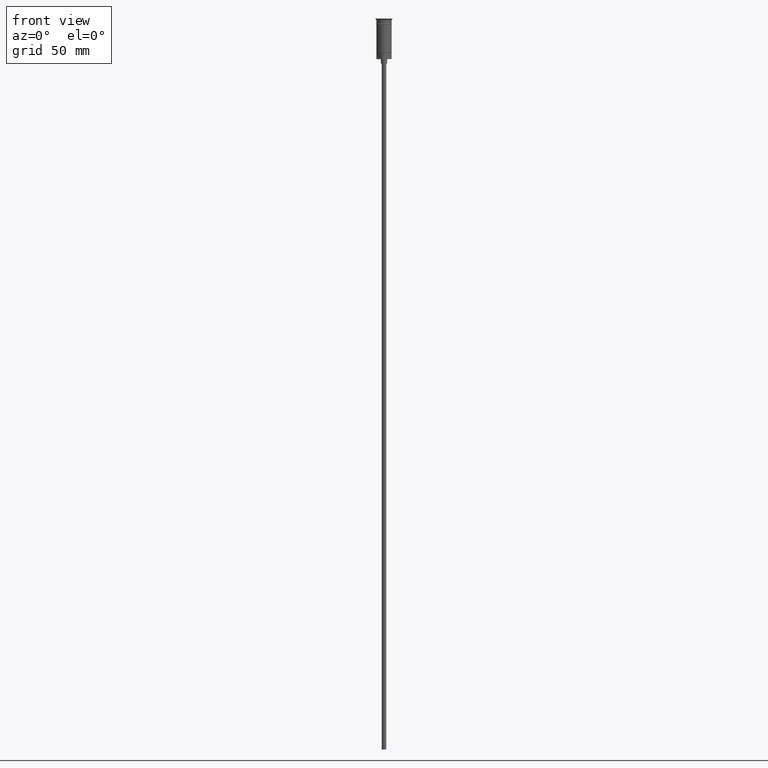
[diagram: clean part render]
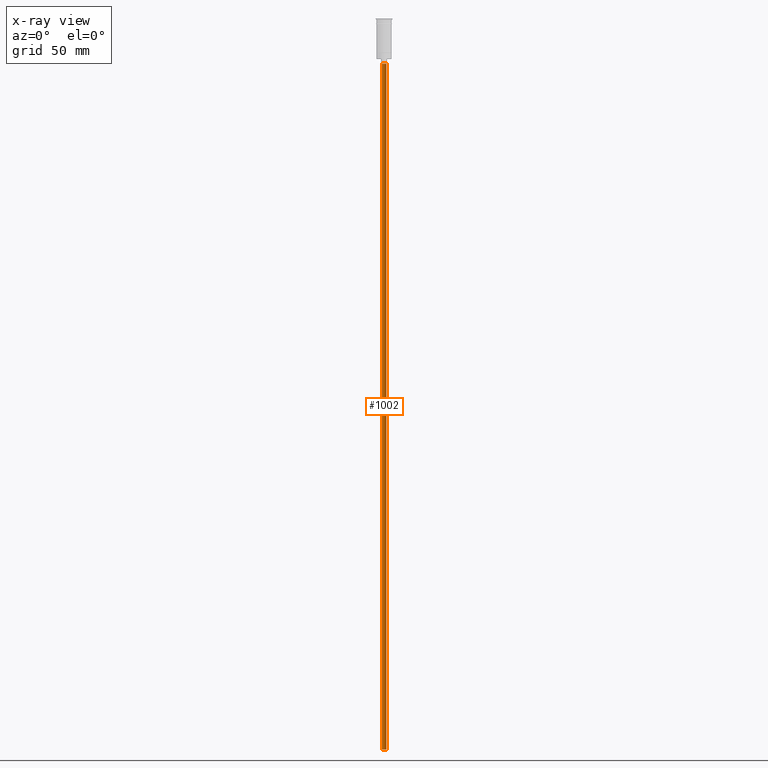
[diagram: x-ray — body ghosted, one internal face saturated and labeled with its STEP entity id]
A machine part, front view, then the same camera in x-ray: the body is ghosted and one INTERNAL B-rep face — a face not visible from any outside direction — is saturated and labeled: STEP entity #1002.
In plain terms, the highlighted cylindrical surface (edge-blend (fillet) strip) has radius 1.5 mm, axis along (-0, -0, 1).
Its self-contained STEP definition (entity closure, byte-faithful):
#7 = VERTEX_POINT ( 'NONE', #1494 ) ;
#60 = ORIENTED_EDGE ( 'NONE', *, *, #595, .F. ) ;
#128 = VERTEX_POINT ( 'NONE', #1255 ) ;
#143 = VECTOR ( 'NONE', #539, 1000.000000000000000 ) ;
#173 = ORIENTED_EDGE ( 'NONE', *, *, #1527, .T. ) ;
#190 = DIRECTION ( 'NONE',  ( -1.000000000000000000, 0.000000000000000000, 0.000000000000000000 ) ) ;
#209 = DIRECTION ( 'NONE',  ( 1.000000000000000000, 0.000000000000000000, 0.000000000000000000 ) ) ;
#305 = CARTESIAN_POINT ( 'NONE',  ( 1.500000000000000222, 0.000000000000000000, -476.5000000000000568 ) ) ;
#308 = CARTESIAN_POINT ( 'NONE',  ( 1.500000000000000222, 0.000000000000000000, -476.5000000000000568 ) ) ;
#412 = CARTESIAN_POINT ( 'NONE',  ( 0.000000000000000000, 0.000000000000000000, -476.5000000000000568 ) ) ;
#464 = VERTEX_POINT ( 'NONE', #1089 ) ;
#539 = DIRECTION ( 'NONE',  ( -0.000000000000000000, -0.000000000000000000, 1.000000000000000000 ) ) ;
#595 = EDGE_CURVE ( 'NONE', #7, #725, #1569, .T. ) ;
#706 = CARTESIAN_POINT ( 'NONE',  ( 0.000000000000000000, 0.000000000000000000, -476.5000000000000568 ) ) ;
#711 = DIRECTION ( 'NONE',  ( -0.000000000000000000, -0.000000000000000000, 1.000000000000000000 ) ) ;
#725 = VERTEX_POINT ( 'NONE', #305 ) ;
#743 = EDGE_LOOP ( 'NONE', ( #60, #173, #851, #782 ) ) ;
#782 = ORIENTED_EDGE ( 'NONE', *, *, #919, .F. ) ;
#783 = DIRECTION ( 'NONE',  ( 0.000000000000000000, 0.000000000000000000, -1.000000000000000000 ) ) ;
#804 = LINE ( 'NONE', #308, #887 ) ;
#851 = ORIENTED_EDGE ( 'NONE', *, *, #1561, .T. ) ;
#872 = LINE ( 'NONE', #878, #143 ) ;
#878 = CARTESIAN_POINT ( 'NONE',  ( -1.500000000000000222, 1.836970198721030181E-16, -476.5000000000000568 ) ) ;
#887 = VECTOR ( 'NONE', #711, 1000.000000000000000 ) ;
#890 = AXIS2_PLACEMENT_3D ( 'NONE', #706, #1197, #209 ) ;
#919 = EDGE_CURVE ( 'NONE', #725, #128, #804, .T. ) ;
#1002 = ADVANCED_FACE ( 'NONE', ( #1450 ), #1559, .T. ) ;
#1062 = CARTESIAN_POINT ( 'NONE',  ( 0.000000000000000000, 0.000000000000000000, -29.50000000000000000 ) ) ;
#1089 = CARTESIAN_POINT ( 'NONE',  ( -1.500000000000000222, 1.836970198721030181E-16, -29.50000000000000000 ) ) ;
#1120 = CIRCLE ( 'NONE', #1514, 1.500000000000000222 ) ;
#1197 = DIRECTION ( 'NONE',  ( -0.000000000000000000, -0.000000000000000000, 1.000000000000000000 ) ) ;
#1255 = CARTESIAN_POINT ( 'NONE',  ( 1.500000000000000222, 0.000000000000000000, -29.50000000000000000 ) ) ;
#1273 = AXIS2_PLACEMENT_3D ( 'NONE', #412, #783, #1280 ) ;
#1280 = DIRECTION ( 'NONE',  ( -1.000000000000000000, 0.000000000000000000, 0.000000000000000000 ) ) ;
#1450 = FACE_OUTER_BOUND ( 'NONE', #743, .T. ) ;
#1494 = CARTESIAN_POINT ( 'NONE',  ( -1.500000000000000222, 1.836970198721030181E-16, -476.5000000000000568 ) ) ;
#1514 = AXIS2_PLACEMENT_3D ( 'NONE', #1062, #1564, #190 ) ;
#1527 = EDGE_CURVE ( 'NONE', #7, #464, #872, .T. ) ;
#1559 = CYLINDRICAL_SURFACE ( 'NONE', #890, 1.500000000000000222 ) ;
#1561 = EDGE_CURVE ( 'NONE', #464, #128, #1120, .T. ) ;
#1564 = DIRECTION ( 'NONE',  ( 0.000000000000000000, 0.000000000000000000, -1.000000000000000000 ) ) ;
#1569 = CIRCLE ( 'NONE', #1273, 1.500000000000000222 ) ;